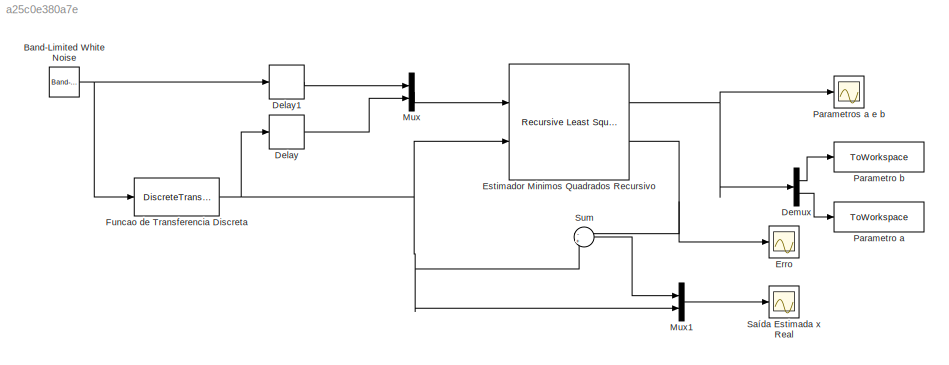
MODEL slx_a25c0e380a7e
KIND model
CONFIG AbsTol = auto
CONFIG EnableMultiTasking = off
CONFIG FixedStep = auto
CONFIG MaxStep = auto
CONFIG MinStep = auto
CONFIG RelTol = 1e-3
CONFIG SampleTimeConstraint = Unconstrained
CONFIG SolverName = VariableStepAuto
CONFIG StartTime = 0.0
CONFIG StopTime = 10
BLOCK [Reference] Band-Limited White Noise  REF=simulink/Sources/Band-Limited
White Noise
  Ports = [0, 1]
  SourceBlock = simulink/Sources/Band-Limited\nWhite Noise
  SourceProductBaseCode = SL
  SourceType = Band-Limited White Noise.
BLOCK [Delay] Delay
  DelayLength = 1
  InitialCondition = 0
  InputPortMap = u0
  Ports = [1, 1]
BLOCK [Delay] Delay1
  DelayLength = 1
  InitialCondition = 0
  InputPortMap = u0
  Ports = [1, 1]
BLOCK [Demux] Demux
  Outputs = 2
  Ports = [1, 2]
BLOCK [Scope] Erro
  Floating = off
  NumInputPorts = 1
  Ports = [1]
  ScopeSpecificationString = Simulink.scopes.TimeScopeBlockCfg('CurrentConfiguration', extmgr.ConfigurationSet(extmgr.Configuration('Core','General UI',true),extmgr.Configuration('Core','Source UI',true),extmgr.Configuration('Sources','WiredSimulink',true,'DataLoggingVariableName','ScopeData1'),extmgr.Configuration('Visuals','Time Domain',true,'SerializedDisplays',{struct('MinYLimReal','-0.32837','MaxYLimReal','0.0365','YLabe...<+1462ch>
BLOCK [Reference] Estimador Minimos Quadrados Recursivo  REF=ctrlSharedLib/Recursive Least Squares Estimator
  Ports = [2, 2]
  SourceBlock = ctrlSharedLib/Recursive Least Squares Estimator
  SourceProductBaseCode = CT,ID
  SourceType = idEstimatorsRLS
BLOCK [DiscreteTransferFcn] Funcao de Transferencia Discreta
  Denominator = [1   -0.8187]
  InputPortMap = u0
  Numerator = 0.1813
  Ports = [1, 1]
BLOCK [Mux] Mux
  DisplayOption = bar
  Inputs = 2
  Ports = [2, 1]
BLOCK [Mux] Mux1
  DisplayOption = bar
  Inputs = 2
  Ports = [2, 1]
BLOCK [ToWorkspace] Parametro a
  FixptAsFi = on
  MaxDataPoints = inf
  Ports = [1]
  SampleTime = -1
  VariableName = a
BLOCK [ToWorkspace] Parametro b
  FixptAsFi = on
  MaxDataPoints = inf
  Ports = [1]
  SampleTime = -1
  VariableName = b
BLOCK [Scope] Parametros a e b
  Floating = off
  NumInputPorts = 1
  Ports = [1]
  ScopeSpecificationString = Simulink.scopes.TimeScopeBlockCfg('CurrentConfiguration', extmgr.ConfigurationSet(extmgr.Configuration('Core','General UI',true),extmgr.Configuration('Core','Source UI',true),extmgr.Configuration('Sources','WiredSimulink',true),extmgr.Configuration('Visuals','Time Domain',true,'SerializedDisplays',{struct('MinYLimReal','0.07649','MaxYLimReal','1.10261','YLabelReal','','MinYLimMag','0.07649','MaxYL...<+1501ch>
BLOCK [Scope] Saída Estimada x Real
  Floating = off
  NumInputPorts = 1
  Ports = [1]
  ScopeSpecificationString = Simulink.scopes.TimeScopeBlockCfg('CurrentConfiguration', extmgr.ConfigurationSet(extmgr.Configuration('Core','General UI',true),extmgr.Configuration('Core','Source UI',true),extmgr.Configuration('Sources','WiredSimulink',true,'DataLoggingVariableName','ScopeData1'),extmgr.Configuration('Visuals','Time Domain',true,'SerializedDisplays',{struct('MinYLimReal','-0.7993','MaxYLimReal','0.88688','YLabe...<+1493ch>
BLOCK [Sum] Sum
  Inputs = -+
  Ports = [2, 1]
NET Band-Limited White Noise:1 -> Delay1:1, Funcao de Transferencia Discreta:1
LINE Delay1:1 -> Mux:1
LINE Delay:1 -> Mux:2
LINE Demux:1 -> Parametro b:1
LINE Demux:2 -> Parametro a:1
NET Estimador Minimos Quadrados Recursivo:1 -> Demux:1, Parametros a e b:1
NET Estimador Minimos Quadrados Recursivo:2 -> Erro:1, Sum:1
NET Funcao de Transferencia Discreta:1 -> Delay:1, Estimador Minimos Quadrados Recursivo:2, Mux1:2, Sum:2
LINE Mux1:1 -> Saída Estimada x Real:1
LINE Mux:1 -> Estimador Minimos Quadrados Recursivo:1
LINE Sum:1 -> Mux1:1
note: NET lines group one-source signal fan-out (src -> all destinations, sorted); 1:1 wires keep LINE
